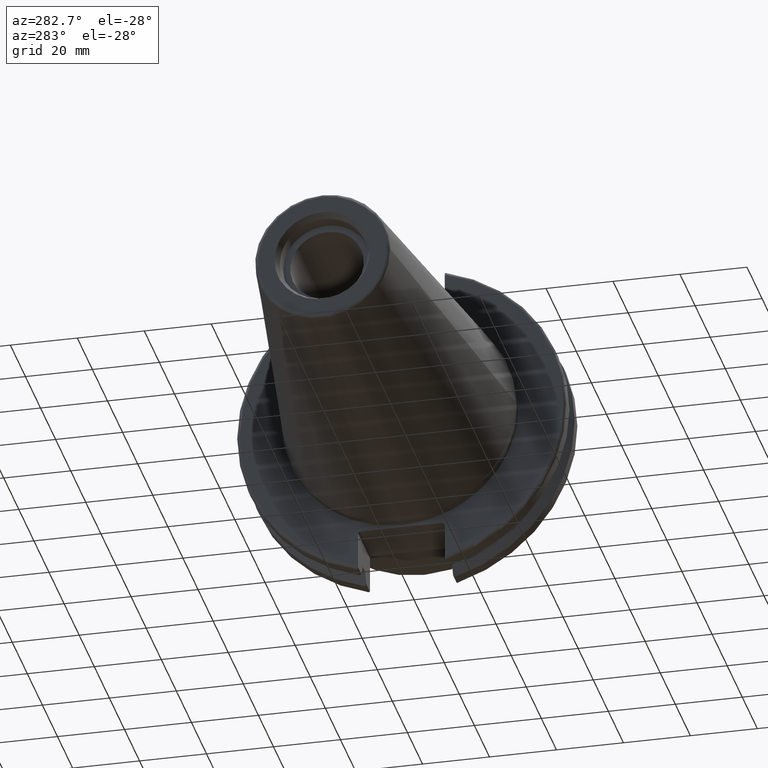
[diagram: clean part render]
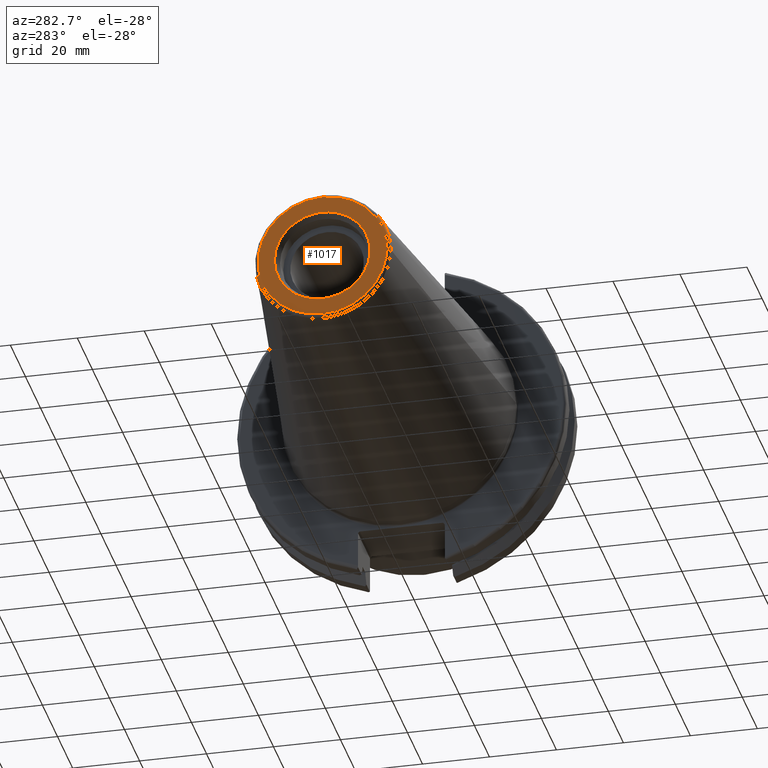
[diagram: same view with one face highlighted and labeled with its STEP entity id]
A machine part, auxiliary view. The second image highlights one B-rep face of the part: STEP entity #1017.
In plain terms, the highlighted planar face has unit normal (-1, 0, 0).
Its self-contained STEP definition (entity closure, byte-faithful):
#61=FACE_BOUND('',#193,.T.);
#75=PLANE('',#1135);
#129=FACE_OUTER_BOUND('',#192,.T.);
#192=EDGE_LOOP('',(#836));
#193=EDGE_LOOP('',(#837));
#399=CIRCLE('',#1134,19.2435889303637);
#400=CIRCLE('',#1136,14.2875);
#500=VERTEX_POINT('',#1815);
#501=VERTEX_POINT('',#1819);
#627=EDGE_CURVE('',#500,#500,#399,.T.);
#628=EDGE_CURVE('',#501,#501,#400,.T.);
#836=ORIENTED_EDGE('',*,*,#627,.F.);
#837=ORIENTED_EDGE('',*,*,#628,.T.);
#1017=ADVANCED_FACE('',(#129,#61),#75,.T.);
#1134=AXIS2_PLACEMENT_3D('',#1817,#1359,#1360);
#1135=AXIS2_PLACEMENT_3D('',#1818,#1361,#1362);
#1136=AXIS2_PLACEMENT_3D('',#1820,#1363,#1364);
#1359=DIRECTION('center_axis',(1.,0.,0.));
#1360=DIRECTION('ref_axis',(0.,-1.,1.83697019872103E-16));
#1361=DIRECTION('center_axis',(-1.,0.,0.));
#1362=DIRECTION('ref_axis',(0.,0.,1.));
#1363=DIRECTION('center_axis',(1.,0.,0.));
#1364=DIRECTION('ref_axis',(0.,0.,-1.));
#1815=CARTESIAN_POINT('',(-101.6,-2.35665995876774E-15,19.2435889303637));
#1817=CARTESIAN_POINT('Origin',(-101.6,0.,0.));
#1818=CARTESIAN_POINT('Origin',(-101.6,20.1083333333333,0.));
#1819=CARTESIAN_POINT('',(-101.6,-14.2875,-1.74971411428178E-15));
#1820=CARTESIAN_POINT('Origin',(-101.6,0.,0.));